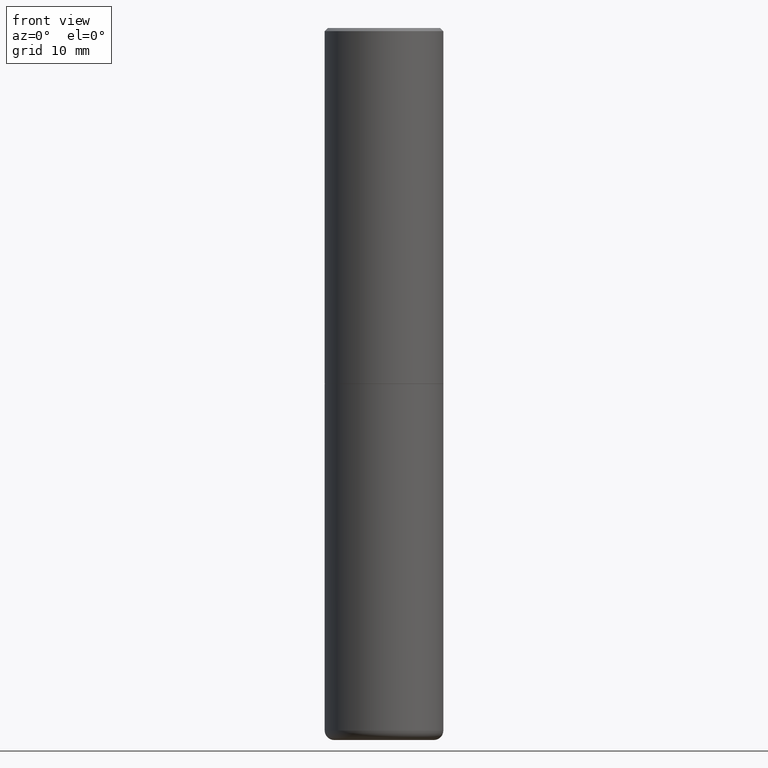
[diagram: clean part render]
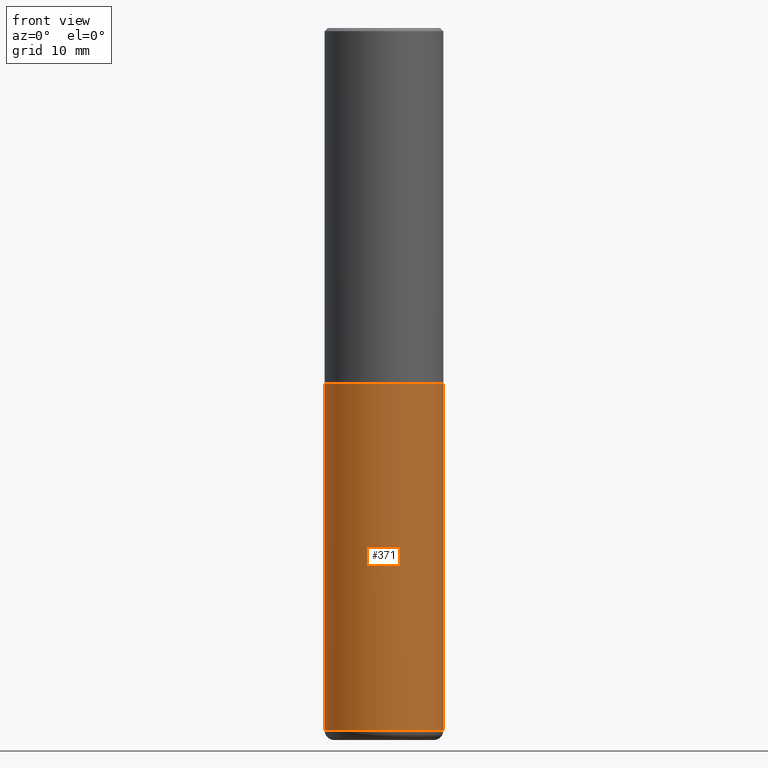
[diagram: same view with one face highlighted and labeled with its STEP entity id]
A machine part, front view. The second image highlights one B-rep face of the part: STEP entity #371.
In plain terms, the highlighted cylindrical surface (partial cylindrical patch) has radius 9.525 mm, axis along (-0, 0, 1).
Its self-contained STEP definition (entity closure, byte-faithful):
#17 = EDGE_CURVE ( 'NONE', #168, #211, #396, .T. ) ;
#20 = AXIS2_PLACEMENT_3D ( 'NONE', #406, #99, #400 ) ;
#65 = EDGE_CURVE ( 'NONE', #154, #168, #214, .T. ) ;
#78 = DIRECTION ( 'NONE',  ( 1.000000000000000000, -6.982962677686265922E-15, 4.876176775795935793E-29 ) ) ;
#79 = CARTESIAN_POINT ( 'NONE',  ( 0.3750000000000000555, -2.618611004132350016E-15, 1.828566290923476203E-29 ) ) ;
#82 = CARTESIAN_POINT ( 'NONE',  ( 0.000000000000000000, 0.000000000000000000, 0.000000000000000000 ) ) ;
#99 = DIRECTION ( 'NONE',  ( -2.445468806185136597E-29, 3.491481338843145583E-15, 1.000000000000000000 ) ) ;
#106 = CARTESIAN_POINT ( 'NONE',  ( 1.085788149946200541E-28, -1.550217714446356700E-14, -4.440000000000000391 ) ) ;
#129 = ORIENTED_EDGE ( 'NONE', *, *, #65, .F. ) ;
#132 = CARTESIAN_POINT ( 'NONE',  ( -0.3749999999999998335, -1.283764188536319288E-14, -4.440000000000000391 ) ) ;
#137 = CARTESIAN_POINT ( 'NONE',  ( 0.3749999999999998335, -1.812078814859591702E-14, -4.440000000000000391 ) ) ;
#152 = CIRCLE ( 'NONE', #328, 0.3750000000000000555 ) ;
#154 = VERTEX_POINT ( 'NONE', #132 ) ;
#168 = VERTEX_POINT ( 'NONE', #172 ) ;
#172 = CARTESIAN_POINT ( 'NONE',  ( -0.3750000000000000555, -9.014469819329945451E-15, -2.250000000000000000 ) ) ;
#182 = EDGE_CURVE ( 'NONE', #258, #211, #224, .T. ) ;
#184 = VECTOR ( 'NONE', #230, 39.37007874015748143 ) ;
#205 = ORIENTED_EDGE ( 'NONE', *, *, #395, .T. ) ;
#211 = VERTEX_POINT ( 'NONE', #340 ) ;
#214 = LINE ( 'NONE', #279, #284 ) ;
#224 = LINE ( 'NONE', #79, #184 ) ;
#227 = DIRECTION ( 'NONE',  ( -2.445468806185136877E-29, 3.491481338843145188E-15, 1.000000000000000000 ) ) ;
#230 = DIRECTION ( 'NONE',  ( -2.445468806185136877E-29, 3.491481338843145188E-15, 1.000000000000000000 ) ) ;
#241 = DIRECTION ( 'NONE',  ( -2.445468806185136597E-29, 3.491481338843145583E-15, 1.000000000000000000 ) ) ;
#257 = CYLINDRICAL_SURFACE ( 'NONE', #289, 0.3750000000000000555 ) ;
#258 = VERTEX_POINT ( 'NONE', #137 ) ;
#279 = CARTESIAN_POINT ( 'NONE',  ( -0.3750000000000000555, 2.664535259100376091E-15, -1.844600658845589598E-29 ) ) ;
#284 = VECTOR ( 'NONE', #227, 39.37007874015748143 ) ;
#289 = AXIS2_PLACEMENT_3D ( 'NONE', #82, #241, #78 ) ;
#301 = DIRECTION ( 'NONE',  ( 1.000000000000000000, -6.982962677686266711E-15, 0.000000000000000000 ) ) ;
#323 = EDGE_LOOP ( 'NONE', ( #129, #205, #326, #405 ) ) ;
#326 = ORIENTED_EDGE ( 'NONE', *, *, #182, .T. ) ;
#328 = AXIS2_PLACEMENT_3D ( 'NONE', #106, #365, #301 ) ;
#340 = CARTESIAN_POINT ( 'NONE',  ( 0.3750000000000000555, -1.047444401652942689E-14, -2.250000000000000000 ) ) ;
#356 = FACE_OUTER_BOUND ( 'NONE', #323, .T. ) ;
#365 = DIRECTION ( 'NONE',  ( -2.445468806185136597E-29, 3.491481338843145583E-15, 1.000000000000000000 ) ) ;
#371 = ADVANCED_FACE ( 'NONE', ( #356 ), #257, .T. ) ;
#395 = EDGE_CURVE ( 'NONE', #154, #258, #152, .T. ) ;
#396 = CIRCLE ( 'NONE', #20, 0.3750000000000000555 ) ;
#400 = DIRECTION ( 'NONE',  ( 1.000000000000000000, -6.982962677686264344E-15, 0.000000000000000000 ) ) ;
#405 = ORIENTED_EDGE ( 'NONE', *, *, #17, .F. ) ;
#406 = CARTESIAN_POINT ( 'NONE',  ( 5.502304813916557343E-29, -7.855833012397078448E-15, -2.250000000000000000 ) ) ;